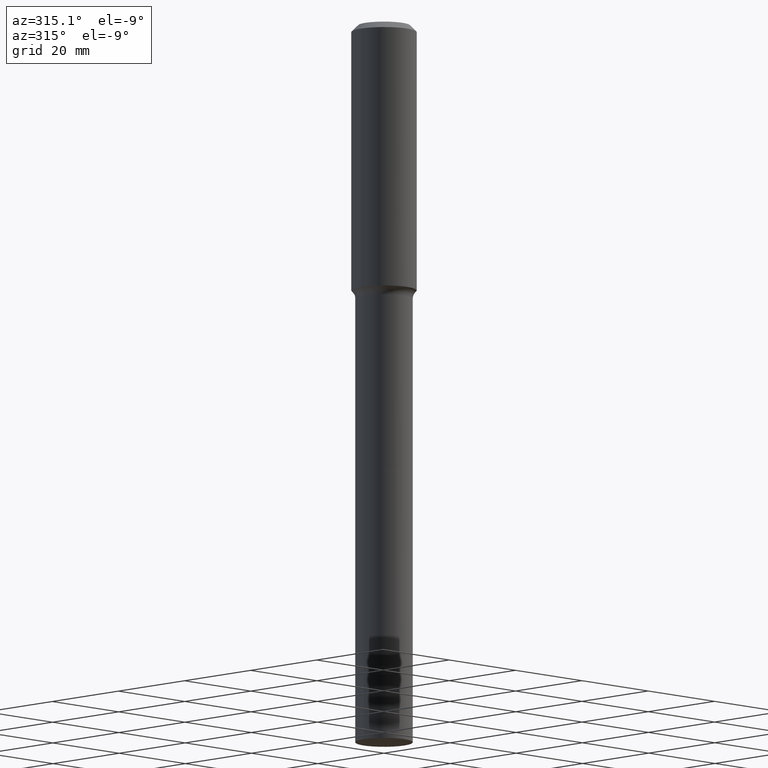
[diagram: clean part render]
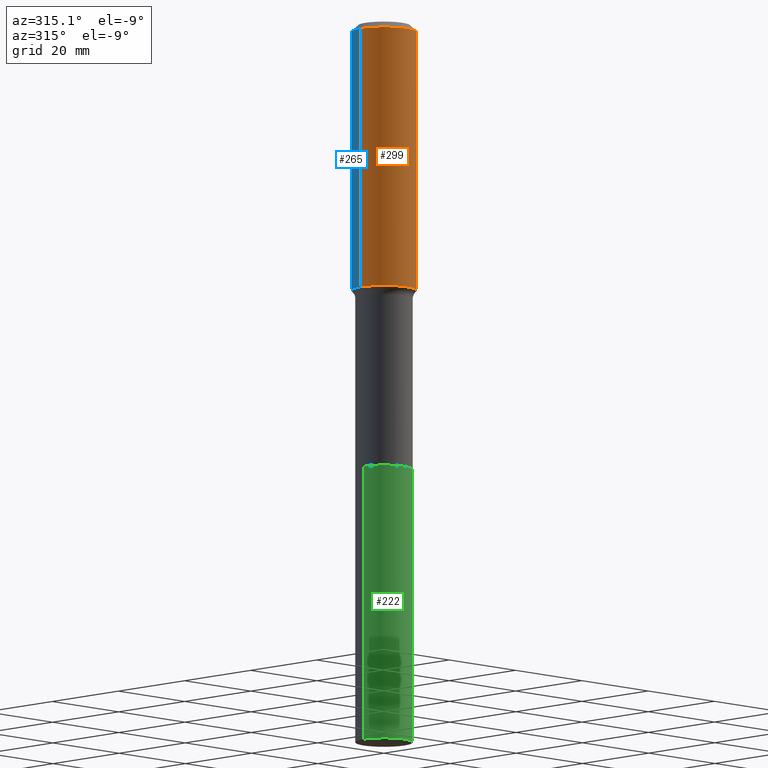
[diagram: same view with three faces highlighted in distinct colors, each labeled with its STEP entity id]
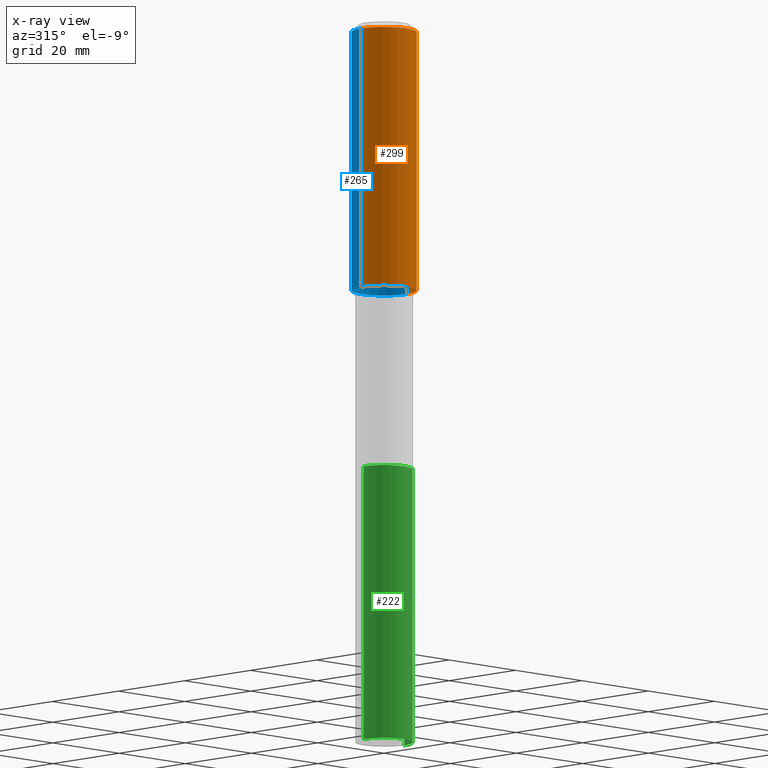
[diagram: x-ray of the same camera — body ghosted, the three highlighted faces saturated]
A machine part, auxiliary view with three faces highlighted in distinct colors.
The next image is the same camera in x-ray (body ghosted, the three faces saturated) — at least one of them is partly hidden behind the body in this view.
Their STEP definitions:

[orange] entity #299 — the highlighted cylindrical surface (edge-blend (fillet) strip) has radius 7.0002 mm, axis along (-0, 0, 1).
#11 = CARTESIAN_POINT ( 'NONE',  ( -0.2756000000000000116, -2.074736939448809893E-15, -0.05512000000000037009 ) ) ;
#28 = CARTESIAN_POINT ( 'NONE',  ( -0.2756000000000001782, 1.958255779754837378E-15, -1.355658510874252848E-29 ) ) ;
#29 = DIRECTION ( 'NONE',  ( -2.445468806185136597E-29, 3.491481338843145583E-15, 1.000000000000000000 ) ) ;
#33 = ORIENTED_EDGE ( 'NONE', *, *, #373, .F. ) ;
#35 = CARTESIAN_POINT ( 'NONE',  ( 1.347942405969256414E-30, -1.924504513970354823E-16, -0.05512000000000037009 ) ) ;
#40 = AXIS2_PLACEMENT_3D ( 'NONE', #378, #219, #176 ) ;
#71 = DIRECTION ( 'NONE',  ( -2.445468806185136597E-29, 3.491481338843145583E-15, 1.000000000000000000 ) ) ;
#99 = LINE ( 'NONE', #174, #220 ) ;
#101 = EDGE_CURVE ( 'NONE', #344, #360, #301, .T. ) ;
#115 = CIRCLE ( 'NONE', #202, 0.2756000000000000116 ) ;
#117 = CARTESIAN_POINT ( 'NONE',  ( 0.000000000000000000, 0.000000000000000000, 0.000000000000000000 ) ) ;
#119 = EDGE_CURVE ( 'NONE', #421, #431, #115, .T. ) ;
#123 = EDGE_LOOP ( 'NONE', ( #33, #295, #330, #288 ) ) ;
#141 = DIRECTION ( 'NONE',  ( -2.445468806185136877E-29, 3.491481338843145188E-15, 1.000000000000000000 ) ) ;
#174 = CARTESIAN_POINT ( 'NONE',  ( 0.2756000000000001782, -1.924504513970336137E-15, 1.343874319409360828E-29 ) ) ;
#176 = DIRECTION ( 'NONE',  ( 1.000000000000000000, -6.982962677686270655E-15, 0.000000000000000000 ) ) ;
#177 = LINE ( 'NONE', #28, #474 ) ;
#182 = DIRECTION ( 'NONE',  ( 1.000000000000000000, -6.982962677686267499E-15, 0.000000000000000000 ) ) ;
#201 = CARTESIAN_POINT ( 'NONE',  ( 0.2756000000000000116, -2.116954965367371053E-15, -0.05512000000000037009 ) ) ;
#202 = AXIS2_PLACEMENT_3D ( 'NONE', #35, #29, #182 ) ;
#209 = CARTESIAN_POINT ( 'NONE',  ( -0.2756000000000002892, -5.915279207255420671E-15, -2.255070047035979908 ) ) ;
#219 = DIRECTION ( 'NONE',  ( -2.445468806185136597E-29, 3.491481338843145583E-15, 1.000000000000000000 ) ) ;
#220 = VECTOR ( 'NONE', #141, 39.37007874015748143 ) ;
#288 = ORIENTED_EDGE ( 'NONE', *, *, #119, .F. ) ;
#290 = DIRECTION ( 'NONE',  ( -2.445468806185136877E-29, 3.491481338843145188E-15, 1.000000000000000000 ) ) ;
#295 = ORIENTED_EDGE ( 'NONE', *, *, #101, .T. ) ;
#299 = ADVANCED_FACE ( 'NONE', ( #512 ), #425, .T. ) ;
#301 = CIRCLE ( 'NONE', #40, 0.2756000000000002892 ) ;
#315 = EDGE_CURVE ( 'NONE', #360, #431, #99, .T. ) ;
#330 = ORIENTED_EDGE ( 'NONE', *, *, #315, .T. ) ;
#344 = VERTEX_POINT ( 'NONE', #209 ) ;
#346 = DIRECTION ( 'NONE',  ( 1.000000000000000000, -6.982962677686265922E-15, 4.876176775795935793E-29 ) ) ;
#360 = VERTEX_POINT ( 'NONE', #504 ) ;
#373 = EDGE_CURVE ( 'NONE', #344, #421, #177, .T. ) ;
#378 = CARTESIAN_POINT ( 'NONE',  ( 5.514703455788938284E-29, -7.873534987010259627E-15, -2.255070047035979908 ) ) ;
#405 = AXIS2_PLACEMENT_3D ( 'NONE', #117, #71, #346 ) ;
#421 = VERTEX_POINT ( 'NONE', #11 ) ;
#425 = CYLINDRICAL_SURFACE ( 'NONE', #405, 0.2756000000000001782 ) ;
#431 = VERTEX_POINT ( 'NONE', #201 ) ;
#474 = VECTOR ( 'NONE', #290, 39.37007874015748143 ) ;
#504 = CARTESIAN_POINT ( 'NONE',  ( 0.2756000000000002892, -9.798039500980596159E-15, -2.255070047035979908 ) ) ;
#512 = FACE_OUTER_BOUND ( 'NONE', #123, .T. ) ;

[blue] entity #265 — the highlighted cylindrical surface (edge-blend (fillet) strip) has radius 7.0002 mm, axis along (-0, 0, 1).
#11 = CARTESIAN_POINT ( 'NONE',  ( -0.2756000000000000116, -2.074736939448809893E-15, -0.05512000000000037009 ) ) ;
#28 = CARTESIAN_POINT ( 'NONE',  ( -0.2756000000000001782, 1.958255779754837378E-15, -1.355658510874252848E-29 ) ) ;
#52 = AXIS2_PLACEMENT_3D ( 'NONE', #247, #205, #357 ) ;
#66 = DIRECTION ( 'NONE',  ( 1.000000000000000000, -6.982962677686265922E-15, 4.876176775795935793E-29 ) ) ;
#68 = ORIENTED_EDGE ( 'NONE', *, *, #315, .F. ) ;
#86 = FACE_OUTER_BOUND ( 'NONE', #388, .T. ) ;
#87 = AXIS2_PLACEMENT_3D ( 'NONE', #105, #393, #66 ) ;
#99 = LINE ( 'NONE', #174, #220 ) ;
#105 = CARTESIAN_POINT ( 'NONE',  ( 0.000000000000000000, 0.000000000000000000, 0.000000000000000000 ) ) ;
#141 = DIRECTION ( 'NONE',  ( -2.445468806185136877E-29, 3.491481338843145188E-15, 1.000000000000000000 ) ) ;
#159 = ORIENTED_EDGE ( 'NONE', *, *, #186, .T. ) ;
#174 = CARTESIAN_POINT ( 'NONE',  ( 0.2756000000000001782, -1.924504513970336137E-15, 1.343874319409360828E-29 ) ) ;
#177 = LINE ( 'NONE', #28, #474 ) ;
#179 = CIRCLE ( 'NONE', #278, 0.2756000000000002892 ) ;
#186 = EDGE_CURVE ( 'NONE', #360, #344, #179, .T. ) ;
#201 = CARTESIAN_POINT ( 'NONE',  ( 0.2756000000000000116, -2.116954965367371053E-15, -0.05512000000000037009 ) ) ;
#205 = DIRECTION ( 'NONE',  ( -2.445468806185136597E-29, 3.491481338843145583E-15, 1.000000000000000000 ) ) ;
#209 = CARTESIAN_POINT ( 'NONE',  ( -0.2756000000000002892, -5.915279207255420671E-15, -2.255070047035979908 ) ) ;
#220 = VECTOR ( 'NONE', #141, 39.37007874015748143 ) ;
#221 = ORIENTED_EDGE ( 'NONE', *, *, #373, .T. ) ;
#233 = DIRECTION ( 'NONE',  ( 1.000000000000000000, -6.982962677686270655E-15, 0.000000000000000000 ) ) ;
#237 = DIRECTION ( 'NONE',  ( -2.445468806185136597E-29, 3.491481338843145583E-15, 1.000000000000000000 ) ) ;
#247 = CARTESIAN_POINT ( 'NONE',  ( 1.347942405969256414E-30, -1.924504513970354823E-16, -0.05512000000000037009 ) ) ;
#251 = EDGE_CURVE ( 'NONE', #431, #421, #256, .T. ) ;
#256 = CIRCLE ( 'NONE', #52, 0.2756000000000000116 ) ;
#265 = ADVANCED_FACE ( 'NONE', ( #86 ), #496, .T. ) ;
#278 = AXIS2_PLACEMENT_3D ( 'NONE', #291, #237, #233 ) ;
#290 = DIRECTION ( 'NONE',  ( -2.445468806185136877E-29, 3.491481338843145188E-15, 1.000000000000000000 ) ) ;
#291 = CARTESIAN_POINT ( 'NONE',  ( 5.514703455788938284E-29, -7.873534987010259627E-15, -2.255070047035979908 ) ) ;
#315 = EDGE_CURVE ( 'NONE', #360, #431, #99, .T. ) ;
#344 = VERTEX_POINT ( 'NONE', #209 ) ;
#357 = DIRECTION ( 'NONE',  ( 1.000000000000000000, -6.982962677686267499E-15, 0.000000000000000000 ) ) ;
#360 = VERTEX_POINT ( 'NONE', #504 ) ;
#373 = EDGE_CURVE ( 'NONE', #344, #421, #177, .T. ) ;
#388 = EDGE_LOOP ( 'NONE', ( #159, #221, #500, #68 ) ) ;
#393 = DIRECTION ( 'NONE',  ( -2.445468806185136597E-29, 3.491481338843145583E-15, 1.000000000000000000 ) ) ;
#421 = VERTEX_POINT ( 'NONE', #11 ) ;
#431 = VERTEX_POINT ( 'NONE', #201 ) ;
#474 = VECTOR ( 'NONE', #290, 39.37007874015748143 ) ;
#496 = CYLINDRICAL_SURFACE ( 'NONE', #87, 0.2756000000000001782 ) ;
#500 = ORIENTED_EDGE ( 'NONE', *, *, #251, .F. ) ;
#504 = CARTESIAN_POINT ( 'NONE',  ( 0.2756000000000002892, -9.798039500980596159E-15, -2.255070047035979908 ) ) ;

[green] entity #222 — the highlighted cylindrical surface (edge-blend (fillet) strip) has radius 6.1519 mm, axis along (-0, 0, 1).
#19 = EDGE_LOOP ( 'NONE', ( #471, #187, #309, #392 ) ) ;
#21 = CIRCLE ( 'NONE', #394, 0.2422000000000000264 ) ;
#43 = DIRECTION ( 'NONE',  ( 1.000000000000000000, -6.982962677686265922E-15, 0.000000000000000000 ) ) ;
#51 = DIRECTION ( 'NONE',  ( -2.445468806185136597E-29, 3.491481338843145583E-15, 1.000000000000000000 ) ) ;
#56 = CARTESIAN_POINT ( 'NONE',  ( 0.2422000000000000264, -1.488697813255939601E-14, -3.779399999999999427 ) ) ;
#69 = CARTESIAN_POINT ( 'NONE',  ( 0.2422000000000000264, -2.299768928269202503E-14, -6.102400000000000269 ) ) ;
#73 = VERTEX_POINT ( 'NONE', #423 ) ;
#79 = VERTEX_POINT ( 'NONE', #69 ) ;
#106 = AXIS2_PLACEMENT_3D ( 'NONE', #438, #51, #43 ) ;
#126 = VECTOR ( 'NONE', #207, 39.37007874015748143 ) ;
#129 = CIRCLE ( 'NONE', #200, 0.2422000000000000264 ) ;
#132 = DIRECTION ( 'NONE',  ( -2.445468806185136597E-29, 3.491481338843145583E-15, 1.000000000000000000 ) ) ;
#168 = EDGE_CURVE ( 'NONE', #73, #79, #21, .T. ) ;
#171 = VECTOR ( 'NONE', #489, 39.37007874015748143 ) ;
#172 = DIRECTION ( 'NONE',  ( -2.445468806185136597E-29, 3.491481338843145583E-15, 1.000000000000000000 ) ) ;
#187 = ORIENTED_EDGE ( 'NONE', *, *, #168, .T. ) ;
#200 = AXIS2_PLACEMENT_3D ( 'NONE', #370, #172, #407 ) ;
#207 = DIRECTION ( 'NONE',  ( -2.445468806185136877E-29, 3.491481338843145188E-15, 1.000000000000000000 ) ) ;
#208 = VERTEX_POINT ( 'NONE', #397 ) ;
#222 = ADVANCED_FACE ( 'NONE', ( #403 ), #286, .T. ) ;
#286 = CYLINDRICAL_SURFACE ( 'NONE', #106, 0.2422000000000000264 ) ;
#309 = ORIENTED_EDGE ( 'NONE', *, *, #433, .T. ) ;
#323 = CARTESIAN_POINT ( 'NONE',  ( -0.2422000000000000264, -1.553012564107913704E-14, -3.779399999999999427 ) ) ;
#328 = LINE ( 'NONE', #335, #126 ) ;
#331 = LINE ( 'NONE', #56, #171 ) ;
#335 = CARTESIAN_POINT ( 'NONE',  ( -0.2422000000000000264, -1.147477006601282096E-14, -3.779399999999999427 ) ) ;
#361 = DIRECTION ( 'NONE',  ( 1.000000000000000000, -6.982962677686265922E-15, 0.000000000000000000 ) ) ;
#370 = CARTESIAN_POINT ( 'NONE',  ( 9.242404806096105288E-29, -1.319570457202378340E-14, -3.779399999999999427 ) ) ;
#392 = ORIENTED_EDGE ( 'NONE', *, *, #499, .F. ) ;
#394 = AXIS2_PLACEMENT_3D ( 'NONE', #477, #132, #361 ) ;
#397 = CARTESIAN_POINT ( 'NONE',  ( 0.2422000000000000264, -1.488697813255939601E-14, -3.779399999999999427 ) ) ;
#403 = FACE_OUTER_BOUND ( 'NONE', #19, .T. ) ;
#407 = DIRECTION ( 'NONE',  ( 1.000000000000000000, -6.982962677686265922E-15, 0.000000000000000000 ) ) ;
#423 = CARTESIAN_POINT ( 'NONE',  ( -0.2422000000000000264, -1.553012564107913704E-14, -6.102400000000000269 ) ) ;
#433 = EDGE_CURVE ( 'NONE', #79, #208, #331, .T. ) ;
#438 = CARTESIAN_POINT ( 'NONE',  ( 9.242404806096105288E-29, -1.319570457202378340E-14, -3.779399999999999427 ) ) ;
#455 = VERTEX_POINT ( 'NONE', #323 ) ;
#471 = ORIENTED_EDGE ( 'NONE', *, *, #508, .F. ) ;
#477 = CARTESIAN_POINT ( 'NONE',  ( 1.492322884286417914E-28, -2.130641572215641241E-14, -6.102400000000000269 ) ) ;
#489 = DIRECTION ( 'NONE',  ( -2.445468806185136877E-29, 3.491481338843145188E-15, 1.000000000000000000 ) ) ;
#499 = EDGE_CURVE ( 'NONE', #455, #208, #129, .T. ) ;
#508 = EDGE_CURVE ( 'NONE', #73, #455, #328, .T. ) ;